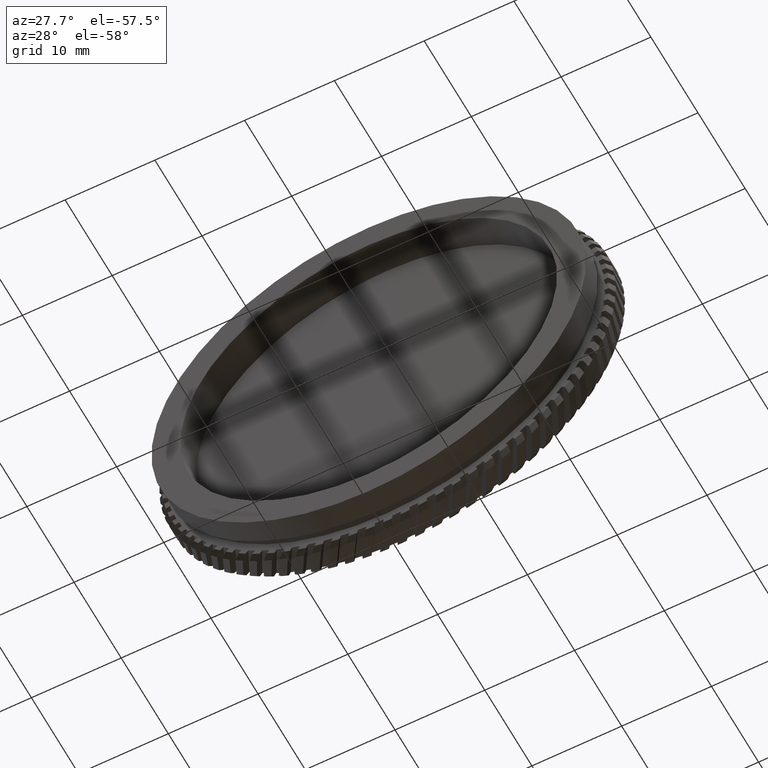
[diagram: clean part render]
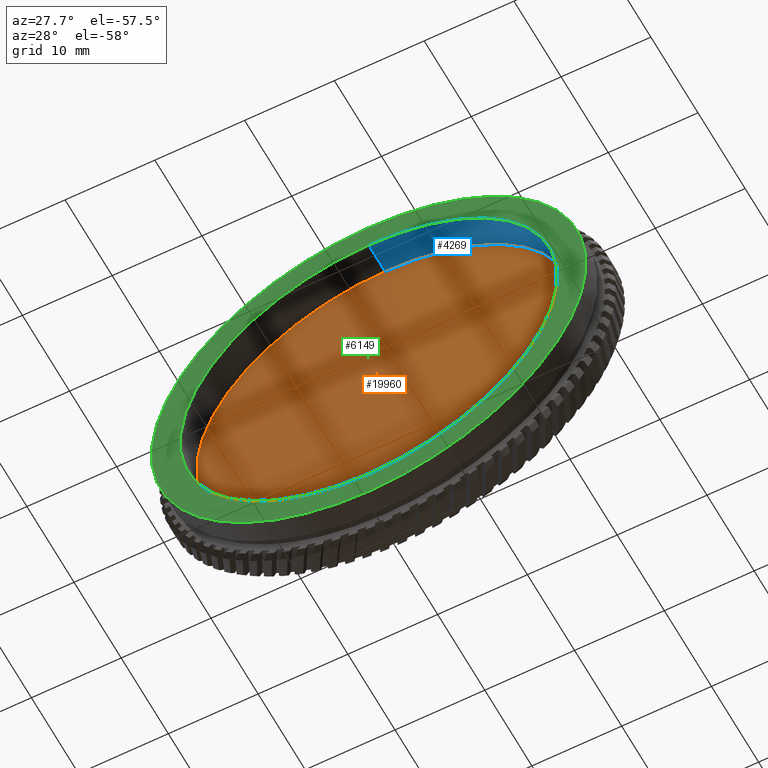
[diagram: same view with three faces highlighted in distinct colors, each labeled with its STEP entity id]
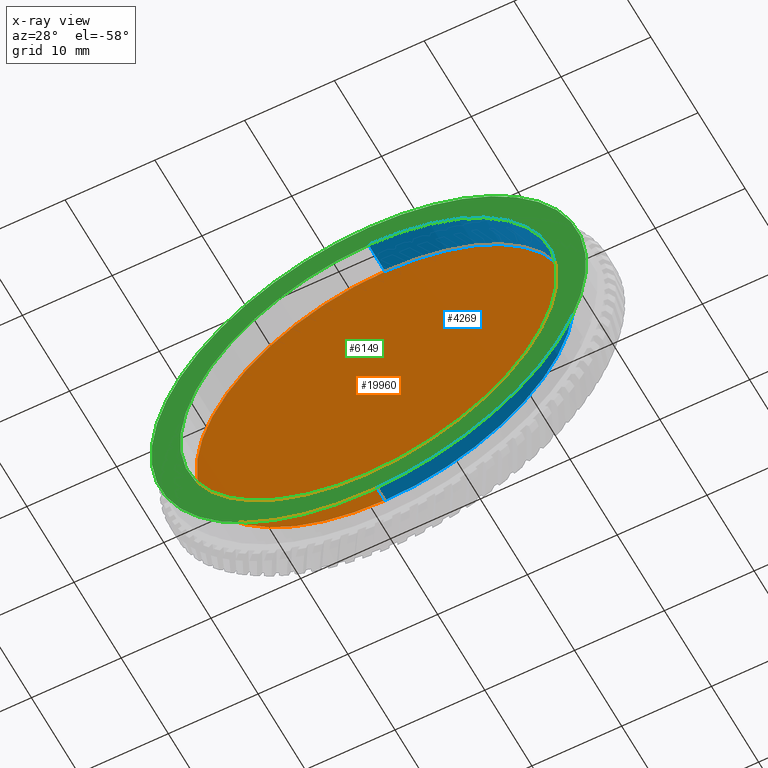
[diagram: x-ray of the same camera — body ghosted, the three highlighted faces saturated]
A machine part, auxiliary view with three faces highlighted in distinct colors.
The next image is the same camera in x-ray (body ghosted, the three faces saturated) — at least one of them is partly hidden behind the body in this view.
Their STEP definitions:

[orange] entity #19960 — the highlighted planar face has unit normal (-0, 1, 0).
#865 = VERTEX_POINT ( 'NONE', #14049 ) ;
#1387 = ORIENTED_EDGE ( 'NONE', *, *, #8918, .F. ) ;
#2820 = DIRECTION ( 'NONE',  ( 0.0000000000000000000, 0.0000000000000000000, 1.000000000000000000 ) ) ;
#3402 = CIRCLE ( 'NONE', #11601, 21.00000000000000700 ) ;
#4520 = CARTESIAN_POINT ( 'NONE',  ( 2.571758278209442400E-015, 18.87125740523061500, -21.00000000000000700 ) ) ;
#6953 = CARTESIAN_POINT ( 'NONE',  ( 0.0000000000000000000, 18.87125740523061500, 0.0000000000000000000 ) ) ;
#7063 = FACE_OUTER_BOUND ( 'NONE', #9924, .T. ) ;
#8918 = EDGE_CURVE ( 'NONE', #9760, #865, #3402, .T. ) ;
#8935 = CARTESIAN_POINT ( 'NONE',  ( 0.0000000000000000000, 18.87125740523061500, 0.0000000000000000000 ) ) ;
#9760 = VERTEX_POINT ( 'NONE', #4520 ) ;
#9924 = EDGE_LOOP ( 'NONE', ( #18827, #1387 ) ) ;
#10243 = AXIS2_PLACEMENT_3D ( 'NONE', #6953, #14781, #19224 ) ;
#10843 = AXIS2_PLACEMENT_3D ( 'NONE', #15697, #18748, #14251 ) ;
#11345 = PLANE ( 'NONE',  #10243 ) ;
#11601 = AXIS2_PLACEMENT_3D ( 'NONE', #8935, #19889, #2820 ) ;
#13501 = CIRCLE ( 'NONE', #10843, 21.00000000000000700 ) ;
#14049 = CARTESIAN_POINT ( 'NONE',  ( 0.0000000000000000000, 18.87125740523061500, 21.00000000000000700 ) ) ;
#14251 = DIRECTION ( 'NONE',  ( 0.0000000000000000000, 0.0000000000000000000, 1.000000000000000000 ) ) ;
#14781 = DIRECTION ( 'NONE',  ( -0.0000000000000000000, 1.000000000000000000, 0.0000000000000000000 ) ) ;
#15697 = CARTESIAN_POINT ( 'NONE',  ( 0.0000000000000000000, 18.87125740523061500, 0.0000000000000000000 ) ) ;
#16623 = EDGE_CURVE ( 'NONE', #865, #9760, #13501, .T. ) ;
#18748 = DIRECTION ( 'NONE',  ( -0.0000000000000000000, 1.000000000000000000, -0.0000000000000000000 ) ) ;
#18827 = ORIENTED_EDGE ( 'NONE', *, *, #16623, .F. ) ;
#19224 = DIRECTION ( 'NONE',  ( 0.0000000000000000000, 0.0000000000000000000, 1.000000000000000000 ) ) ;
#19889 = DIRECTION ( 'NONE',  ( -0.0000000000000000000, 1.000000000000000000, -0.0000000000000000000 ) ) ;
#19960 = ADVANCED_FACE ( 'NONE', ( #7063 ), #11345, .F. ) ;

[blue] entity #4269 — the highlighted cylindrical surface (partial cylindrical patch) has radius 21 mm, axis along (-0, 1, -0).
#865 = VERTEX_POINT ( 'NONE', #14049 ) ;
#1863 = LINE ( 'NONE', #3058, #13259 ) ;
#1908 = EDGE_CURVE ( 'NONE', #16841, #9760, #7944, .T. ) ;
#3058 = CARTESIAN_POINT ( 'NONE',  ( 0.0000000000000000000, 66.62876213592232900, 21.00000000000000700 ) ) ;
#3900 = VECTOR ( 'NONE', #11831, 1000.000000000000000 ) ;
#4018 = CARTESIAN_POINT ( 'NONE',  ( 2.571758278209442400E-015, 66.62876213592232900, -21.00000000000000700 ) ) ;
#4269 = ADVANCED_FACE ( 'NONE', ( #8351 ), #15212, .F. ) ;
#4520 = CARTESIAN_POINT ( 'NONE',  ( 2.571758278209442400E-015, 18.87125740523061500, -21.00000000000000700 ) ) ;
#5175 = DIRECTION ( 'NONE',  ( 0.0000000000000000000, 0.0000000000000000000, 1.000000000000000000 ) ) ;
#5482 = CARTESIAN_POINT ( 'NONE',  ( 2.571758278209442400E-015, 15.37125740523061900, -21.00000000000000700 ) ) ;
#6518 = ORIENTED_EDGE ( 'NONE', *, *, #19002, .F. ) ;
#6622 = CIRCLE ( 'NONE', #15640, 21.00000000000000700 ) ;
#7550 = DIRECTION ( 'NONE',  ( -0.0000000000000000000, 1.000000000000000000, -0.0000000000000000000 ) ) ;
#7917 = EDGE_LOOP ( 'NONE', ( #13658, #6518, #12240, #17315 ) ) ;
#7944 = LINE ( 'NONE', #4018, #3900 ) ;
#8168 = CARTESIAN_POINT ( 'NONE',  ( 0.0000000000000000000, 66.62876213592232900, 0.0000000000000000000 ) ) ;
#8351 = FACE_OUTER_BOUND ( 'NONE', #7917, .T. ) ;
#9760 = VERTEX_POINT ( 'NONE', #4520 ) ;
#10207 = CARTESIAN_POINT ( 'NONE',  ( 0.0000000000000000000, 15.37125740523061900, 0.0000000000000000000 ) ) ;
#10843 = AXIS2_PLACEMENT_3D ( 'NONE', #15697, #18748, #14251 ) ;
#11365 = DIRECTION ( 'NONE',  ( -0.0000000000000000000, 1.000000000000000000, -0.0000000000000000000 ) ) ;
#11831 = DIRECTION ( 'NONE',  ( -0.0000000000000000000, 1.000000000000000000, -0.0000000000000000000 ) ) ;
#12240 = ORIENTED_EDGE ( 'NONE', *, *, #16528, .T. ) ;
#13259 = VECTOR ( 'NONE', #7550, 1000.000000000000000 ) ;
#13501 = CIRCLE ( 'NONE', #10843, 21.00000000000000700 ) ;
#13658 = ORIENTED_EDGE ( 'NONE', *, *, #1908, .F. ) ;
#14049 = CARTESIAN_POINT ( 'NONE',  ( 0.0000000000000000000, 18.87125740523061500, 21.00000000000000700 ) ) ;
#14251 = DIRECTION ( 'NONE',  ( 0.0000000000000000000, 0.0000000000000000000, 1.000000000000000000 ) ) ;
#14762 = DIRECTION ( 'NONE',  ( 0.0000000000000000000, 0.0000000000000000000, 1.000000000000000000 ) ) ;
#14886 = DIRECTION ( 'NONE',  ( -0.0000000000000000000, 1.000000000000000000, -0.0000000000000000000 ) ) ;
#15212 = CYLINDRICAL_SURFACE ( 'NONE', #16103, 21.00000000000000700 ) ;
#15640 = AXIS2_PLACEMENT_3D ( 'NONE', #10207, #14886, #14762 ) ;
#15697 = CARTESIAN_POINT ( 'NONE',  ( 0.0000000000000000000, 18.87125740523061500, 0.0000000000000000000 ) ) ;
#16103 = AXIS2_PLACEMENT_3D ( 'NONE', #8168, #11365, #5175 ) ;
#16528 = EDGE_CURVE ( 'NONE', #19395, #865, #1863, .T. ) ;
#16623 = EDGE_CURVE ( 'NONE', #865, #9760, #13501, .T. ) ;
#16841 = VERTEX_POINT ( 'NONE', #5482 ) ;
#17315 = ORIENTED_EDGE ( 'NONE', *, *, #16623, .T. ) ;
#18748 = DIRECTION ( 'NONE',  ( -0.0000000000000000000, 1.000000000000000000, -0.0000000000000000000 ) ) ;
#19002 = EDGE_CURVE ( 'NONE', #19395, #16841, #6622, .T. ) ;
#19036 = CARTESIAN_POINT ( 'NONE',  ( 0.0000000000000000000, 15.37125740523061900, 21.00000000000000700 ) ) ;
#19395 = VERTEX_POINT ( 'NONE', #19036 ) ;

[green] entity #6149 — the highlighted planar face has unit normal (-0, 1, 0).
#119 = ORIENTED_EDGE ( 'NONE', *, *, #19002, .T. ) ;
#695 = AXIS2_PLACEMENT_3D ( 'NONE', #17370, #12486, #15743 ) ;
#955 = EDGE_CURVE ( 'NONE', #1331, #2355, #2946, .T. ) ;
#1331 = VERTEX_POINT ( 'NONE', #8049 ) ;
#1334 = CARTESIAN_POINT ( 'NONE',  ( 0.0000000000000000000, 15.37125740523061900, 0.0000000000000000000 ) ) ;
#2081 = AXIS2_PLACEMENT_3D ( 'NONE', #6549, #12713, #12789 ) ;
#2355 = VERTEX_POINT ( 'NONE', #19705 ) ;
#2946 = CIRCLE ( 'NONE', #2081, 24.20000000000000600 ) ;
#4223 = DIRECTION ( 'NONE',  ( -0.0000000000000000000, 1.000000000000000000, -0.0000000000000000000 ) ) ;
#4270 = EDGE_LOOP ( 'NONE', ( #7879, #18441 ) ) ;
#4895 = CIRCLE ( 'NONE', #10905, 24.20000000000000600 ) ;
#5482 = CARTESIAN_POINT ( 'NONE',  ( 2.571758278209442400E-015, 15.37125740523061900, -21.00000000000000700 ) ) ;
#5615 = CIRCLE ( 'NONE', #695, 21.00000000000000700 ) ;
#6149 = ADVANCED_FACE ( 'NONE', ( #9490, #15381 ), #15754, .F. ) ;
#6384 = CARTESIAN_POINT ( 'NONE',  ( 21.00000000000000700, 15.37125740523061700, 0.0000000000000000000 ) ) ;
#6468 = DIRECTION ( 'NONE',  ( 0.0000000000000000000, 0.0000000000000000000, 1.000000000000000000 ) ) ;
#6549 = CARTESIAN_POINT ( 'NONE',  ( 0.0000000000000000000, 15.37125740523061900, 0.0000000000000000000 ) ) ;
#6622 = CIRCLE ( 'NONE', #15640, 21.00000000000000700 ) ;
#7879 = ORIENTED_EDGE ( 'NONE', *, *, #13451, .F. ) ;
#8049 = CARTESIAN_POINT ( 'NONE',  ( 2.963645253936595400E-015, 15.37125740523061900, -24.20000000000000600 ) ) ;
#9363 = DIRECTION ( 'NONE',  ( -0.0000000000000000000, 1.000000000000000000, 0.0000000000000000000 ) ) ;
#9490 = FACE_OUTER_BOUND ( 'NONE', #4270, .T. ) ;
#10207 = CARTESIAN_POINT ( 'NONE',  ( 0.0000000000000000000, 15.37125740523061900, 0.0000000000000000000 ) ) ;
#10905 = AXIS2_PLACEMENT_3D ( 'NONE', #1334, #4223, #16655 ) ;
#12486 = DIRECTION ( 'NONE',  ( -0.0000000000000000000, 1.000000000000000000, -0.0000000000000000000 ) ) ;
#12609 = EDGE_CURVE ( 'NONE', #16841, #19395, #5615, .T. ) ;
#12713 = DIRECTION ( 'NONE',  ( -0.0000000000000000000, 1.000000000000000000, -0.0000000000000000000 ) ) ;
#12789 = DIRECTION ( 'NONE',  ( 0.0000000000000000000, 0.0000000000000000000, 1.000000000000000000 ) ) ;
#13451 = EDGE_CURVE ( 'NONE', #2355, #1331, #4895, .T. ) ;
#14762 = DIRECTION ( 'NONE',  ( 0.0000000000000000000, 0.0000000000000000000, 1.000000000000000000 ) ) ;
#14886 = DIRECTION ( 'NONE',  ( -0.0000000000000000000, 1.000000000000000000, -0.0000000000000000000 ) ) ;
#14941 = AXIS2_PLACEMENT_3D ( 'NONE', #6384, #9363, #6468 ) ;
#15381 = FACE_BOUND ( 'NONE', #19027, .T. ) ;
#15640 = AXIS2_PLACEMENT_3D ( 'NONE', #10207, #14886, #14762 ) ;
#15743 = DIRECTION ( 'NONE',  ( 0.0000000000000000000, 0.0000000000000000000, 1.000000000000000000 ) ) ;
#15754 = PLANE ( 'NONE',  #14941 ) ;
#16655 = DIRECTION ( 'NONE',  ( 0.0000000000000000000, 0.0000000000000000000, 1.000000000000000000 ) ) ;
#16841 = VERTEX_POINT ( 'NONE', #5482 ) ;
#17370 = CARTESIAN_POINT ( 'NONE',  ( 0.0000000000000000000, 15.37125740523061900, 0.0000000000000000000 ) ) ;
#18441 = ORIENTED_EDGE ( 'NONE', *, *, #955, .F. ) ;
#19002 = EDGE_CURVE ( 'NONE', #19395, #16841, #6622, .T. ) ;
#19027 = EDGE_LOOP ( 'NONE', ( #119, #19641 ) ) ;
#19036 = CARTESIAN_POINT ( 'NONE',  ( 0.0000000000000000000, 15.37125740523061900, 21.00000000000000700 ) ) ;
#19395 = VERTEX_POINT ( 'NONE', #19036 ) ;
#19641 = ORIENTED_EDGE ( 'NONE', *, *, #12609, .T. ) ;
#19705 = CARTESIAN_POINT ( 'NONE',  ( 0.0000000000000000000, 15.37125740523061900, 24.20000000000000600 ) ) ;